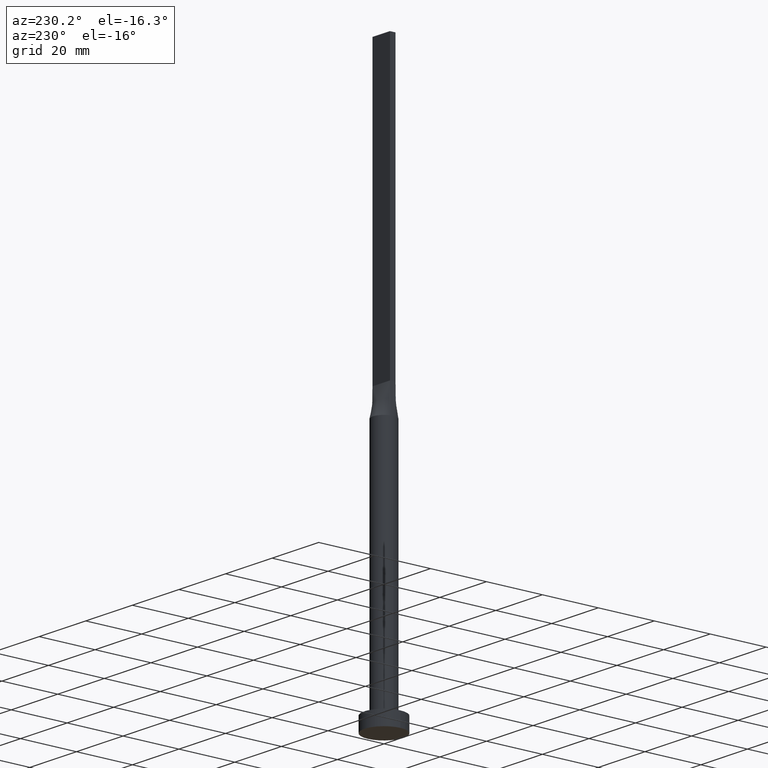
[diagram: clean part render]
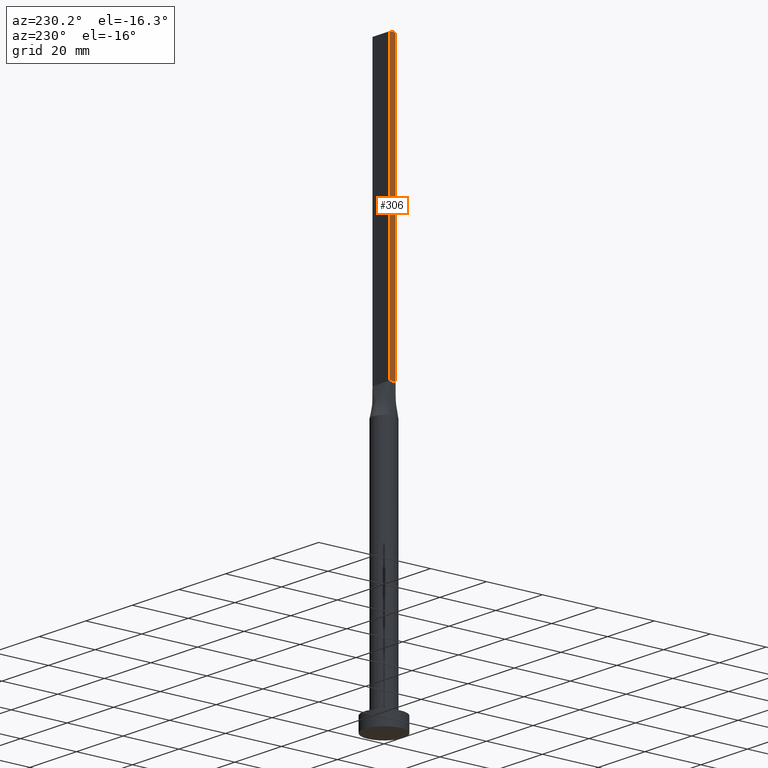
[diagram: same view with one face highlighted and labeled with its STEP entity id]
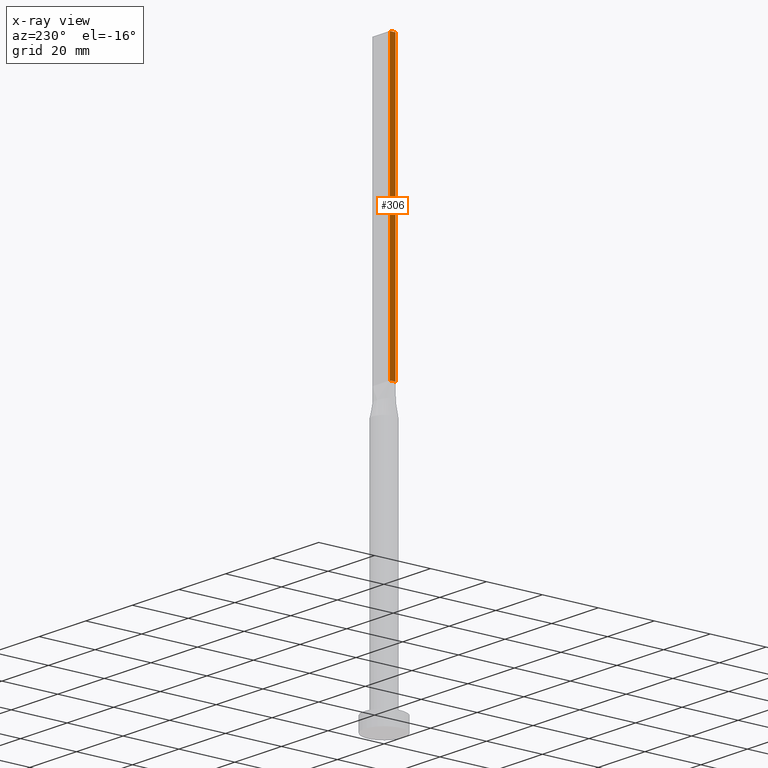
[diagram: x-ray of the same camera — body ghosted, the highlighted face saturated]
A machine part, auxiliary view. The second image highlights one B-rep face of the part: STEP entity #306.
The next image is the same camera in x-ray: the body ghosted, the highlighted face saturated — about 0% of this face is hidden behind the body in this view.
In plain terms, the highlighted planar face has unit normal (1, 0, -0).
Its self-contained STEP definition (entity closure, byte-faithful):
#23 = DIRECTION ( 'NONE',  ( -0.000000000000000000, -0.000000000000000000, -1.000000000000000000 ) ) ;
#39 = VERTEX_POINT ( 'NONE', #175 ) ;
#82 = EDGE_CURVE ( 'NONE', #39, #180, #151, .T. ) ;
#115 = LINE ( 'NONE', #343, #341 ) ;
#126 = EDGE_LOOP ( 'NONE', ( #131, #167, #153, #483 ) ) ;
#129 = VECTOR ( 'NONE', #369, 1000.000000000000000 ) ;
#131 = ORIENTED_EDGE ( 'NONE', *, *, #82, .T. ) ;
#134 = DIRECTION ( 'NONE',  ( 1.000000000000000000, 0.000000000000000000, -0.000000000000000000 ) ) ;
#151 = LINE ( 'NONE', #226, #129 ) ;
#153 = ORIENTED_EDGE ( 'NONE', *, *, #541, .F. ) ;
#167 = ORIENTED_EDGE ( 'NONE', *, *, #261, .F. ) ;
#175 = CARTESIAN_POINT ( 'NONE',  ( -3.750000000000000000, 1.000000000000000000, 100.0000000000000000 ) ) ;
#176 = CARTESIAN_POINT ( 'NONE',  ( -3.750000000000000000, 1.000000000000000000, 200.0000000000000000 ) ) ;
#180 = VERTEX_POINT ( 'NONE', #560 ) ;
#206 = LINE ( 'NONE', #239, #471 ) ;
#214 = DIRECTION ( 'NONE',  ( -0.000000000000000000, 0.000000000000000000, -1.000000000000000000 ) ) ;
#226 = CARTESIAN_POINT ( 'NONE',  ( -3.750000000000000000, 1.000000000000000000, 100.0000000000000000 ) ) ;
#239 = CARTESIAN_POINT ( 'NONE',  ( -3.750000000000000000, -0.9999999999999991118, 200.0000000000000000 ) ) ;
#246 = CARTESIAN_POINT ( 'NONE',  ( -3.750000000000000000, 1.000000000000000000, 200.0000000000000000 ) ) ;
#257 = EDGE_CURVE ( 'NONE', #429, #39, #115, .T. ) ;
#261 = EDGE_CURVE ( 'NONE', #549, #180, #206, .T. ) ;
#263 = CARTESIAN_POINT ( 'NONE',  ( -3.750000000000000000, 1.000000000000000000, 200.0000000000000000 ) ) ;
#306 = ADVANCED_FACE ( 'NONE', ( #309 ), #574, .F. ) ;
#309 = FACE_OUTER_BOUND ( 'NONE', #126, .T. ) ;
#341 = VECTOR ( 'NONE', #518, 1000.000000000000000 ) ;
#343 = CARTESIAN_POINT ( 'NONE',  ( -3.750000000000000000, 1.000000000000000000, 200.0000000000000000 ) ) ;
#369 = DIRECTION ( 'NONE',  ( 0.000000000000000000, -1.000000000000000000, 0.000000000000000000 ) ) ;
#375 = CARTESIAN_POINT ( 'NONE',  ( -3.750000000000000000, -0.9999999999999991118, 200.0000000000000000 ) ) ;
#425 = LINE ( 'NONE', #246, #490 ) ;
#427 = DIRECTION ( 'NONE',  ( 0.000000000000000000, -1.000000000000000000, 0.000000000000000000 ) ) ;
#429 = VERTEX_POINT ( 'NONE', #176 ) ;
#471 = VECTOR ( 'NONE', #23, 1000.000000000000000 ) ;
#483 = ORIENTED_EDGE ( 'NONE', *, *, #257, .T. ) ;
#490 = VECTOR ( 'NONE', #427, 1000.000000000000000 ) ;
#518 = DIRECTION ( 'NONE',  ( -0.000000000000000000, -0.000000000000000000, -1.000000000000000000 ) ) ;
#527 = AXIS2_PLACEMENT_3D ( 'NONE', #263, #134, #214 ) ;
#541 = EDGE_CURVE ( 'NONE', #429, #549, #425, .T. ) ;
#549 = VERTEX_POINT ( 'NONE', #375 ) ;
#560 = CARTESIAN_POINT ( 'NONE',  ( -3.750000000000000000, -0.9999999999999991118, 100.0000000000000000 ) ) ;
#574 = PLANE ( 'NONE',  #527 ) ;